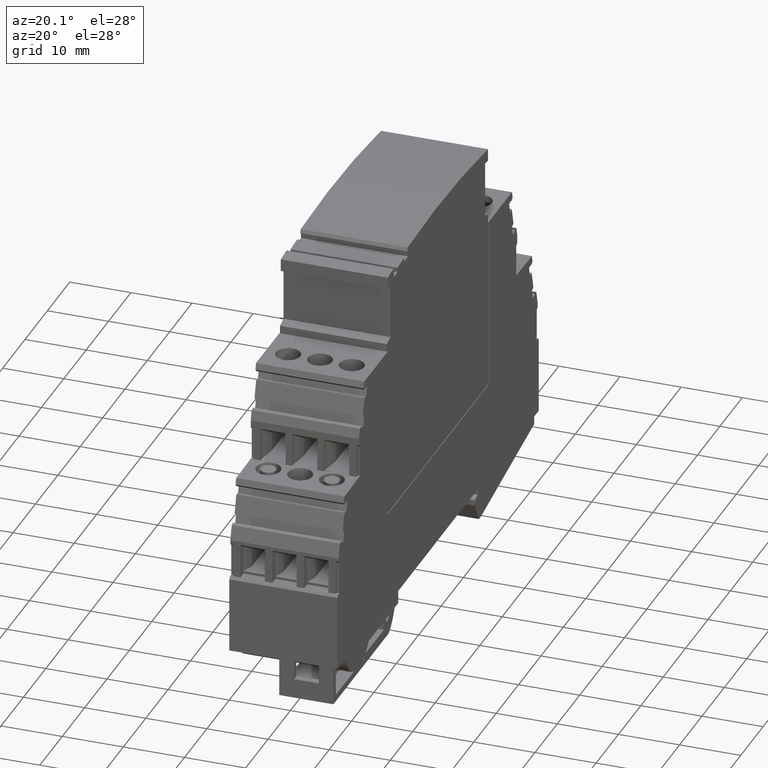
[diagram: clean part render]
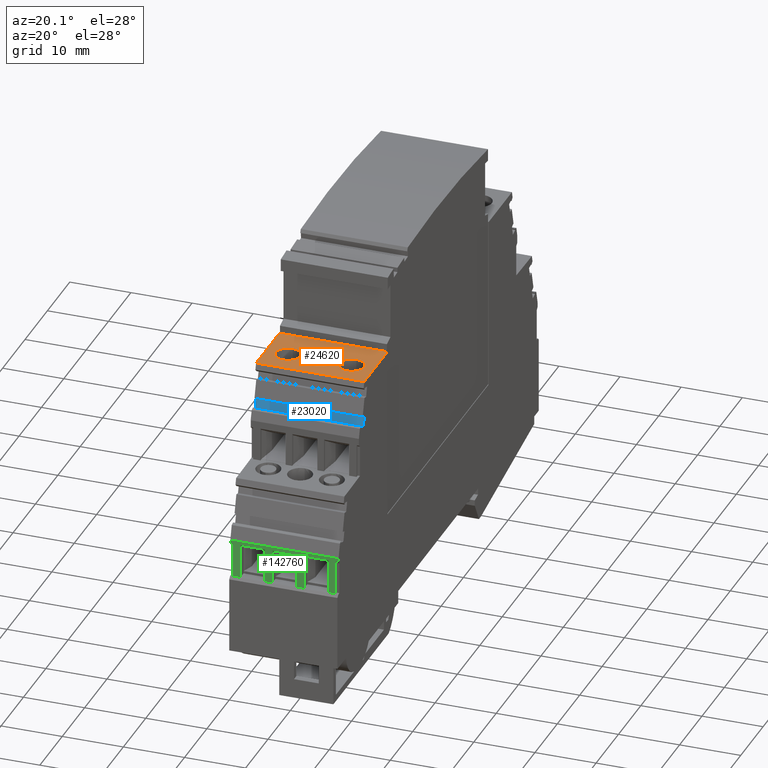
[diagram: same view with three faces highlighted in distinct colors, each labeled with its STEP entity id]
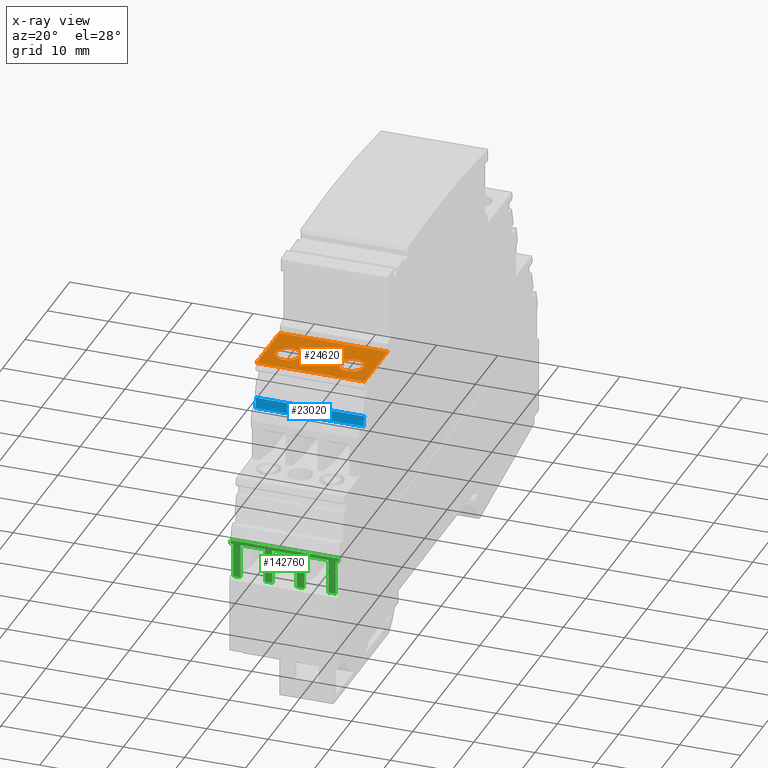
[diagram: x-ray of the same camera — body ghosted, the three highlighted faces saturated]
A machine part, auxiliary view with three faces highlighted in distinct colors.
The next image is the same camera in x-ray (body ghosted, the three faces saturated) — at least one of them is partly hidden behind the body in this view.
Their STEP definitions:

[orange] entity #24620 — the highlighted planar face has unit normal (0, -0, -1).
#1480=CARTESIAN_POINT('',(102.341351260641,59.0562740524438,
-49.4595517602489));
#1490=VERTEX_POINT('',#1480);
#1520=CARTESIAN_POINT('',(138.682702553201,59.0562740524438,
-49.4595517602489));
#1530=DIRECTION('',(1.,1.20996962449382E-16,1.22464679914735E-16));
#1540=VECTOR('',#1530,1.);
#1550=LINE('',#1520,#1540);
#1560=CARTESIAN_POINT('',(91.9413513139153,59.0562740524438,
-49.4595517602489));
#1570=VERTEX_POINT('',#1560);
#1580=EDGE_CURVE('',#1570,#1490,#1550,.T.);
#19820=CARTESIAN_POINT('',(91.9413513139153,59.0562740524438,
-31.7595517602489));
#19830=VERTEX_POINT('',#19820);
#19860=CARTESIAN_POINT('',(138.682702553201,59.0562740524438,
-31.7595517602489));
#19870=DIRECTION('',(-1.,-1.20996962449382E-16,-1.22455682824757E-16));
#19880=VECTOR('',#19870,1.);
#19890=LINE('',#19860,#19880);
#19900=CARTESIAN_POINT('',(102.341351260641,59.0562740524438,
-31.7595517602489));
#19910=VERTEX_POINT('',#19900);
#19920=EDGE_CURVE('',#19910,#19830,#19890,.T.);
#23720=CARTESIAN_POINT('',(92.5390931159069,59.0562740524438,
-31.7595517602489));
#23730=DIRECTION('',(1.20996962449382E-16,-1.,-7.51478429024837E-19));
#23740=DIRECTION('',(-1.22455682824757E-16,-7.51478429024852E-19,1.));
#23750=AXIS2_PLACEMENT_3D('',#23720,#23730,#23740);
#23760=PLANE('',#23750);
#23770=CARTESIAN_POINT('',(97.941351266208,59.0562740524438,
-35.4095517602489));
#23780=DIRECTION('',(-1.20996962449382E-16,1.,7.51478429024837E-19));
#23790=DIRECTION('',(-1.,-1.20996962449382E-16,8.99708997865547E-21));
#23800=AXIS2_PLACEMENT_3D('',#23770,#23780,#23790);
#23810=CIRCLE('',#23800,2.);
#23820=CARTESIAN_POINT('',(97.941351266208,59.0562740524438,
-33.4095517602489));
#23830=VERTEX_POINT('',#23820);
#23840=CARTESIAN_POINT('',(99.941351266208,59.0562740524438,
-35.4095517602489));
#23850=VERTEX_POINT('',#23840);
#23860=EDGE_CURVE('',#23830,#23850,#23810,.T.);
#23870=ORIENTED_EDGE('',*,*,#23860,.F.);
#23880=CARTESIAN_POINT('',(95.941351266208,59.0562740524438,
-35.4095517602489));
#23890=VERTEX_POINT('',#23880);
#23900=EDGE_CURVE('',#23850,#23890,#23810,.T.);
#23910=ORIENTED_EDGE('',*,*,#23900,.F.);
#23920=EDGE_CURVE('',#23890,#23830,#23810,.T.);
#23930=ORIENTED_EDGE('',*,*,#23920,.F.);
#23940=EDGE_LOOP('',(#23930,#23910,#23870));
#23950=FACE_BOUND('',#23940,.T.);
#23960=CARTESIAN_POINT('',(97.941351266208,59.0562740524438,
-40.6095517602489));
#23970=DIRECTION('',(-1.20996962449382E-16,1.,7.51478429024837E-19));
#23980=DIRECTION('',(-1.,-1.20996962449382E-16,8.99708997865547E-21));
#23990=AXIS2_PLACEMENT_3D('',#23960,#23970,#23980);
#24000=CIRCLE('',#23990,2.);
#24010=CARTESIAN_POINT('',(95.9817594719815,59.0562740524438,
-41.0095517602489));
#24020=VERTEX_POINT('',#24010);
#24030=CARTESIAN_POINT('',(95.941351266208,59.0562740524438,
-40.6095517602489));
#24040=VERTEX_POINT('',#24030);
#24050=EDGE_CURVE('',#24020,#24040,#24000,.T.);
#24060=ORIENTED_EDGE('',*,*,#24050,.F.);
#24070=CARTESIAN_POINT('',(99.941351266208,59.0562740524438,
-40.6095517602489));
#24080=VERTEX_POINT('',#24070);
#24090=EDGE_CURVE('',#24040,#24080,#24000,.T.);
#24100=ORIENTED_EDGE('',*,*,#24090,.F.);
#24110=EDGE_CURVE('',#24080,#24020,#24000,.T.);
#24120=ORIENTED_EDGE('',*,*,#24110,.F.);
#24130=EDGE_LOOP('',(#24120,#24100,#24060));
#24140=FACE_BOUND('',#24130,.T.);
#24150=CARTESIAN_POINT('',(97.941351266208,59.0562740524438,
-45.8095517602489));
#24160=DIRECTION('',(1.20996962449382E-16,-1.,-7.51478429024837E-19));
#24170=DIRECTION('',(-1.,-1.20996962449382E-16,8.99708997865547E-21));
#24180=AXIS2_PLACEMENT_3D('',#24150,#24160,#24170);
#24190=CIRCLE('',#24180,2.);
#24200=CARTESIAN_POINT('',(95.941351266208,59.0562740524438,
-45.8095517602489));
#24210=VERTEX_POINT('',#24200);
#24220=CARTESIAN_POINT('',(99.941351266208,59.0562740524438,
-45.8095517602489));
#24230=VERTEX_POINT('',#24220);
#24240=EDGE_CURVE('',#24210,#24230,#24190,.T.);
#24250=ORIENTED_EDGE('',*,*,#24240,.T.);
#24260=CARTESIAN_POINT('',(97.941351266208,59.0562740524438,
-43.8095517602489));
#24270=VERTEX_POINT('',#24260);
#24280=EDGE_CURVE('',#24270,#24210,#24190,.T.);
#24290=ORIENTED_EDGE('',*,*,#24280,.T.);
#24300=EDGE_CURVE('',#24230,#24270,#24190,.T.);
#24310=ORIENTED_EDGE('',*,*,#24300,.T.);
#24320=EDGE_LOOP('',(#24310,#24290,#24250));
#24330=FACE_BOUND('',#24320,.T.);
#24340=ORIENTED_EDGE('',*,*,#19920,.F.);
#24350=CARTESIAN_POINT('',(91.941351313916,59.0562740524438,
-84.8000000001848));
#24360=DIRECTION('',(0.,-7.51478429024816E-19,1.));
#24370=VECTOR('',#24360,1.);
#24380=LINE('',#24350,#24370);
#24390=CARTESIAN_POINT('',(91.941351313916,59.0562740524438,
-31.8595517602489));
#24400=VERTEX_POINT('',#24390);
#24410=EDGE_CURVE('',#24400,#19830,#24380,.T.);
#24420=ORIENTED_EDGE('',*,*,#24410,.T.);
#24430=CARTESIAN_POINT('',(91.941351313916,59.0562740524438,
-84.8000000001848));
#24440=DIRECTION('',(-1.22464679914735E-16,-7.51478429024852E-19,1.));
#24450=VECTOR('',#24440,1.);
#24460=LINE('',#24430,#24450);
#24470=CARTESIAN_POINT('',(91.941351313916,59.0562740524438,
-49.3595517602489));
#24480=VERTEX_POINT('',#24470);
#24490=EDGE_CURVE('',#24480,#24400,#24460,.T.);
#24500=ORIENTED_EDGE('',*,*,#24490,.T.);
#24510=EDGE_CURVE('',#1570,#24480,#24380,.T.);
#24520=ORIENTED_EDGE('',*,*,#24510,.T.);
#24530=ORIENTED_EDGE('',*,*,#1580,.F.);
#24540=CARTESIAN_POINT('',(102.341351260641,59.0562740524438,
-83.0095517603414));
#24550=DIRECTION('',(0.,-7.51478429024831E-19,1.));
#24560=VECTOR('',#24550,1.);
#24570=LINE('',#24540,#24560);
#24580=EDGE_CURVE('',#1490,#19910,#24570,.T.);
#24590=ORIENTED_EDGE('',*,*,#24580,.F.);
#24600=EDGE_LOOP('',(#24590,#24530,#24520,#24500,#24420,#24340));
#24610=FACE_OUTER_BOUND('',#24600,.T.);
#24620=ADVANCED_FACE('',(#23950,#24140,#24330,#24610),#23760,.F.);

[blue] entity #23020 — the highlighted planar face has unit normal (0, 0.9646, -0.2639).
#760=CARTESIAN_POINT('',(102.760580222481,51.4603092298246,
-49.4595517602489));
#770=VERTEX_POINT('',#760);
#800=CARTESIAN_POINT('',(122.774976010075,-21.7,-49.4595517602489));
#810=DIRECTION('',(0.263873049965258,-0.96455741845783,
3.23151286021203E-17));
#820=VECTOR('',#810,1.);
#830=LINE('',#800,#820);
#840=CARTESIAN_POINT('',(102.339205702275,53.0005950584347,
-49.4595517602489));
#850=VERTEX_POINT('',#840);
#860=EDGE_CURVE('',#850,#770,#830,.T.);
#20540=CARTESIAN_POINT('',(102.339205702275,53.0005950584346,
-31.7595517602489));
#20550=VERTEX_POINT('',#20540);
#20580=CARTESIAN_POINT('',(111.77226409312,18.519141,-31.7595517602489))
;
#20590=DIRECTION('',(-0.263873049965258,0.96455741845783,
-3.23127545125469E-17));
#20600=VECTOR('',#20590,1.);
#20610=LINE('',#20580,#20600);
#20620=CARTESIAN_POINT('',(102.760580222481,51.4603092298246,
-31.7595517602489));
#20630=VERTEX_POINT('',#20620);
#20640=EDGE_CURVE('',#20630,#20550,#20610,.T.);
#22810=CARTESIAN_POINT('',(102.435923742941,52.6470534457696,
-31.7595517602489));
#22820=DIRECTION('',(-0.964557418457829,-0.263873049965258,
-1.98294905049846E-19));
#22830=DIRECTION('',(-0.263873049965258,0.96455741845783,
-3.23127545125469E-17));
#22840=AXIS2_PLACEMENT_3D('',#22810,#22820,#22830);
#22850=PLANE('',#22840);
#22860=ORIENTED_EDGE('',*,*,#20640,.F.);
#22870=CARTESIAN_POINT('',(102.339205702275,53.0005950584347,
-83.0095517603414));
#22880=DIRECTION('',(-4.93038065763132E-32,7.51478429024817E-19,-1.));
#22890=VECTOR('',#22880,1.);
#22900=LINE('',#22870,#22890);
#22910=EDGE_CURVE('',#20550,#850,#22900,.T.);
#22920=ORIENTED_EDGE('',*,*,#22910,.F.);
#22930=ORIENTED_EDGE('',*,*,#860,.F.);
#22940=CARTESIAN_POINT('',(102.760580222481,51.4603092298246,
-83.0095517603414));
#22950=DIRECTION('',(-4.93038065763132E-32,7.51478429024835E-19,-1.));
#22960=VECTOR('',#22950,1.);
#22970=LINE('',#22940,#22960);
#22980=EDGE_CURVE('',#20630,#770,#22970,.T.);
#22990=ORIENTED_EDGE('',*,*,#22980,.T.);
#23000=EDGE_LOOP('',(#22990,#22930,#22920,#22860));
#23010=FACE_OUTER_BOUND('',#23000,.T.);
#23020=ADVANCED_FACE('',(#23010),#22850,.F.);

[green] entity #142760 — the highlighted planar face has unit normal (0, 1, -0).
#7030=CARTESIAN_POINT('',(113.841351260641,33.4062740524439,
-49.4595517602489));
#7040=VERTEX_POINT('',#7030);
#7070=CARTESIAN_POINT('',(113.841351260641,-21.7,-49.4595517602489));
#7080=DIRECTION('',(1.20996962449382E-16,-1.,1.48178542770189E-32));
#7090=VECTOR('',#7080,1.);
#7100=LINE('',#7070,#7090);
#7110=CARTESIAN_POINT('',(113.841351260641,34.0022747303488,
-49.4595517602489));
#7120=VERTEX_POINT('',#7110);
#7130=EDGE_CURVE('',#7120,#7040,#7100,.T.);
#11580=CARTESIAN_POINT('',(113.841351260641,34.0022747303488,
-31.7595517602489));
#11590=VERTEX_POINT('',#11580);
#11710=CARTESIAN_POINT('',(113.841351260641,34.0022747303488,
-83.0095517603414));
#11720=DIRECTION('',(0.,-7.51478429024846E-19,1.));
#11730=VECTOR('',#11720,1.);
#11740=LINE('',#11710,#11730);
#11750=EDGE_CURVE('',#7120,#11590,#11740,.T.);
#14810=CARTESIAN_POINT('',(113.841351260641,18.519141,-31.7595517602489)
);
#14820=DIRECTION('',(1.20996962449382E-16,-1.,4.09142050234659E-32));
#14830=VECTOR('',#14820,1.);
#14840=LINE('',#14810,#14830);
#14850=CARTESIAN_POINT('',(113.841351260641,33.4062740524438,
-31.7595517602489));
#14860=VERTEX_POINT('',#14850);
#14870=EDGE_CURVE('',#11590,#14860,#14840,.T.);
#32190=CARTESIAN_POINT('',(113.841351260641,33.4062740524438,
-33.4095517602489));
#32200=VERTEX_POINT('',#32190);
#32230=CARTESIAN_POINT('',(113.841351260641,33.4062740524438,
-83.0095517603414));
#32240=DIRECTION('',(0.,-7.51478429024831E-19,1.));
#32250=VECTOR('',#32240,1.);
#32260=LINE('',#32230,#32250);
#32270=CARTESIAN_POINT('',(113.841351260641,33.4062740524438,
-37.4095517602489));
#32280=VERTEX_POINT('',#32270);
#32290=EDGE_CURVE('',#32280,#32200,#32260,.T.);
#32560=CARTESIAN_POINT('',(113.841351260641,33.4062740524438,
-32.2095517722175));
#32570=VERTEX_POINT('',#32560);
#32620=CARTESIAN_POINT('',(113.841351260641,-21.7,-32.2095517722175));
#32630=DIRECTION('',(2.46519032881568E-32,1.,-7.9286568070645E-48));
#32640=VECTOR('',#32630,1.);
#32650=LINE('',#32620,#32640);
#32660=CARTESIAN_POINT('',(113.841351260641,27.8062740524438,
-32.2095517722175));
#32670=VERTEX_POINT('',#32660);
#32680=EDGE_CURVE('',#32670,#32570,#32650,.T.);
#33900=CARTESIAN_POINT('',(113.841351260641,33.4062740524438,
-49.0095517482797));
#33910=VERTEX_POINT('',#33900);
#33960=CARTESIAN_POINT('',(113.841351260641,33.4062740524438,
-83.0095517603414));
#33970=DIRECTION('',(0.,-7.51478429024831E-19,1.));
#33980=VECTOR('',#33970,1.);
#33990=LINE('',#33960,#33980);
#34000=EDGE_CURVE('',#7040,#33910,#33990,.T.);
#36190=CARTESIAN_POINT('',(113.841351260641,33.4062740524438,
-43.809551760249));
#36200=VERTEX_POINT('',#36190);
#36230=CARTESIAN_POINT('',(113.841351260641,33.4062740524438,
-47.809551760249));
#36240=VERTEX_POINT('',#36230);
#36250=EDGE_CURVE('',#36240,#36200,#33990,.T.);
#37900=CARTESIAN_POINT('',(113.841351260641,27.8062740524438,
-49.0095517482797));
#37910=VERTEX_POINT('',#37900);
#37940=CARTESIAN_POINT('',(113.841351260641,-21.7,-49.0095517482797));
#37950=DIRECTION('',(-2.46519032881568E-32,-1.,7.9286568070645E-48));
#37960=VECTOR('',#37950,1.);
#37970=LINE('',#37940,#37960);
#37980=EDGE_CURVE('',#33910,#37910,#37970,.T.);
#38730=CARTESIAN_POINT('',(113.841351260641,33.4062740524438,
-83.0095517603414));
#38740=DIRECTION('',(0.,-7.51478429024831E-19,1.));
#38750=VECTOR('',#38740,1.);
#38760=LINE('',#38730,#38750);
#38770=EDGE_CURVE('',#32570,#14860,#38760,.T.);
#141780=CARTESIAN_POINT('',(113.841351260641,33.5993243546256,
-31.7595517602489));
#141790=DIRECTION('',(-1.,-1.20996962449382E-16,4.95049452887063E-48));
#141800=DIRECTION('',(0.,4.09142050234659E-32,1.));
#141810=AXIS2_PLACEMENT_3D('',#141780,#141790,#141800);
#141820=PLANE('',#141810);
#141830=CARTESIAN_POINT('',(113.841351260641,-21.7,-33.4095517602489));
#141840=DIRECTION('',(-2.46519032881568E-32,-1.,7.9286568070645E-48));
#141850=VECTOR('',#141840,1.);
#141860=LINE('',#141830,#141850);
#141870=CARTESIAN_POINT('',(113.841351260641,27.8062740524438,
-33.4095517602489));
#141880=VERTEX_POINT('',#141870);
#141890=EDGE_CURVE('',#32200,#141880,#141860,.T.);
#141900=ORIENTED_EDGE('',*,*,#141890,.F.);
#141910=CARTESIAN_POINT('',(113.841351260641,27.8062740524438,
-83.0095517603414));
#141920=DIRECTION('',(5.48589631791828E-15,-7.51478429023731E-19,1.));
#141930=VECTOR('',#141920,1.);
#141940=LINE('',#141910,#141930);
#141950=EDGE_CURVE('',#141880,#32670,#141940,.T.);
#141960=ORIENTED_EDGE('',*,*,#141950,.F.);
#141970=ORIENTED_EDGE('',*,*,#32680,.F.);
#141980=ORIENTED_EDGE('',*,*,#38770,.F.);
#141990=ORIENTED_EDGE('',*,*,#14870,.T.);
#142000=ORIENTED_EDGE('',*,*,#11750,.T.);
#142010=ORIENTED_EDGE('',*,*,#7130,.F.);
#142020=ORIENTED_EDGE('',*,*,#34000,.F.);
#142030=ORIENTED_EDGE('',*,*,#37980,.F.);
#142040=CARTESIAN_POINT('',(113.841351260641,27.8062740524438,
-83.0095517603414));
#142050=DIRECTION('',(5.48589631791828E-15,-7.51478429023731E-19,1.));
#142060=VECTOR('',#142050,1.);
#142070=LINE('',#142040,#142060);
#142080=CARTESIAN_POINT('',(113.841351260641,27.8062740524438,
-47.809551760249));
#142090=VERTEX_POINT('',#142080);
#142100=EDGE_CURVE('',#37910,#142090,#142070,.T.);
#142110=ORIENTED_EDGE('',*,*,#142100,.F.);
#142120=CARTESIAN_POINT('',(113.841351260641,-21.7,-47.809551760249));
#142130=DIRECTION('',(2.46519032881568E-32,1.,-7.9286568070645E-48));
#142140=VECTOR('',#142130,1.);
#142150=LINE('',#142120,#142140);
#142160=EDGE_CURVE('',#142090,#36240,#142150,.T.);
#142170=ORIENTED_EDGE('',*,*,#142160,.F.);
#142180=ORIENTED_EDGE('',*,*,#36250,.F.);
#142190=CARTESIAN_POINT('',(113.841351260641,-21.7,-43.809551760249));
#142200=DIRECTION('',(-2.46519032881568E-32,-1.,7.9286568070645E-48));
#142210=VECTOR('',#142200,1.);
#142220=LINE('',#142190,#142210);
#142230=CARTESIAN_POINT('',(113.841351260641,27.8062740524438,
-43.809551760249));
#142240=VERTEX_POINT('',#142230);
#142250=EDGE_CURVE('',#36200,#142240,#142220,.T.);
#142260=ORIENTED_EDGE('',*,*,#142250,.F.);
#142270=CARTESIAN_POINT('',(113.841351260641,27.8062740524438,
-83.0095517603414));
#142280=DIRECTION('',(5.48589631791828E-15,-7.51478429023731E-19,1.));
#142290=VECTOR('',#142280,1.);
#142300=LINE('',#142270,#142290);
#142310=CARTESIAN_POINT('',(113.841351260641,27.8062740524438,
-42.6095517602489));
#142320=VERTEX_POINT('',#142310);
#142330=EDGE_CURVE('',#142240,#142320,#142300,.T.);
#142340=ORIENTED_EDGE('',*,*,#142330,.F.);
#142350=CARTESIAN_POINT('',(113.841351260641,-21.7,-42.6095517602489));
#142360=DIRECTION('',(2.46519032881568E-32,1.,-7.9286568070645E-48));
#142370=VECTOR('',#142360,1.);
#142380=LINE('',#142350,#142370);
#142390=CARTESIAN_POINT('',(113.841351260641,33.4062740524438,
-42.6095517602489));
#142400=VERTEX_POINT('',#142390);
#142410=EDGE_CURVE('',#142320,#142400,#142380,.T.);
#142420=ORIENTED_EDGE('',*,*,#142410,.F.);
#142430=CARTESIAN_POINT('',(113.841351260641,33.4062740524438,
-83.0095517603414));
#142440=DIRECTION('',(0.,-7.51478429024831E-19,1.));
#142450=VECTOR('',#142440,1.);
#142460=LINE('',#142430,#142450);
#142470=CARTESIAN_POINT('',(113.841351260641,33.4062740524438,
-38.6095517602489));
#142480=VERTEX_POINT('',#142470);
#142490=EDGE_CURVE('',#142400,#142480,#142460,.T.);
#142500=ORIENTED_EDGE('',*,*,#142490,.F.);
#142510=CARTESIAN_POINT('',(113.841351260641,-21.7,-38.6095517602489));
#142520=DIRECTION('',(-2.46519032881568E-32,-1.,7.9286568070645E-48));
#142530=VECTOR('',#142520,1.);
#142540=LINE('',#142510,#142530);
#142550=CARTESIAN_POINT('',(113.841351260641,27.8062740524438,
-38.6095517602489));
#142560=VERTEX_POINT('',#142550);
#142570=EDGE_CURVE('',#142480,#142560,#142540,.T.);
#142580=ORIENTED_EDGE('',*,*,#142570,.F.);
#142590=CARTESIAN_POINT('',(113.841351260641,27.8062740524438,
-83.0095517603414));
#142600=DIRECTION('',(5.48589631791828E-15,-7.51478429023731E-19,1.));
#142610=VECTOR('',#142600,1.);
#142620=LINE('',#142590,#142610);
#142630=CARTESIAN_POINT('',(113.841351260641,27.8062740524438,
-37.4095517602489));
#142640=VERTEX_POINT('',#142630);
#142650=EDGE_CURVE('',#142560,#142640,#142620,.T.);
#142660=ORIENTED_EDGE('',*,*,#142650,.F.);
#142670=CARTESIAN_POINT('',(113.841351260641,-21.7,-37.4095517602489));
#142680=DIRECTION('',(2.46519032881568E-32,1.,-7.9286568070645E-48));
#142690=VECTOR('',#142680,1.);
#142700=LINE('',#142670,#142690);
#142710=EDGE_CURVE('',#142640,#32280,#142700,.T.);
#142720=ORIENTED_EDGE('',*,*,#142710,.F.);
#142730=ORIENTED_EDGE('',*,*,#32290,.F.);
#142740=EDGE_LOOP('',(#142730,#142720,#142660,#142580,#142500,#142420,
#142340,#142260,#142180,#142170,#142110,#142030,#142020,#142010,#142000,
#141990,#141980,#141970,#141960,#141900));
#142750=FACE_OUTER_BOUND('',#142740,.T.);
#142760=ADVANCED_FACE('',(#142750),#141820,.F.);